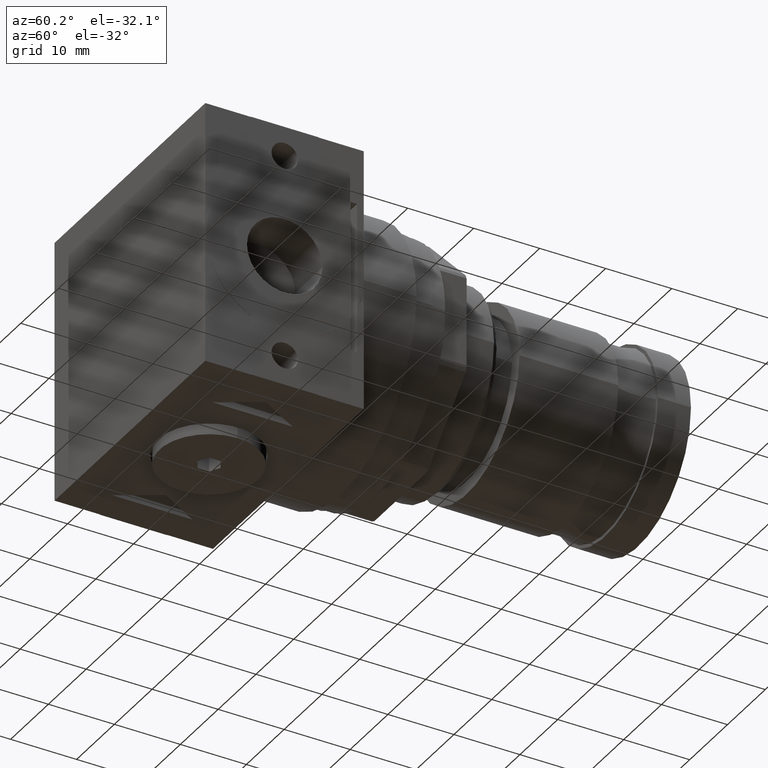
[diagram: clean part render]
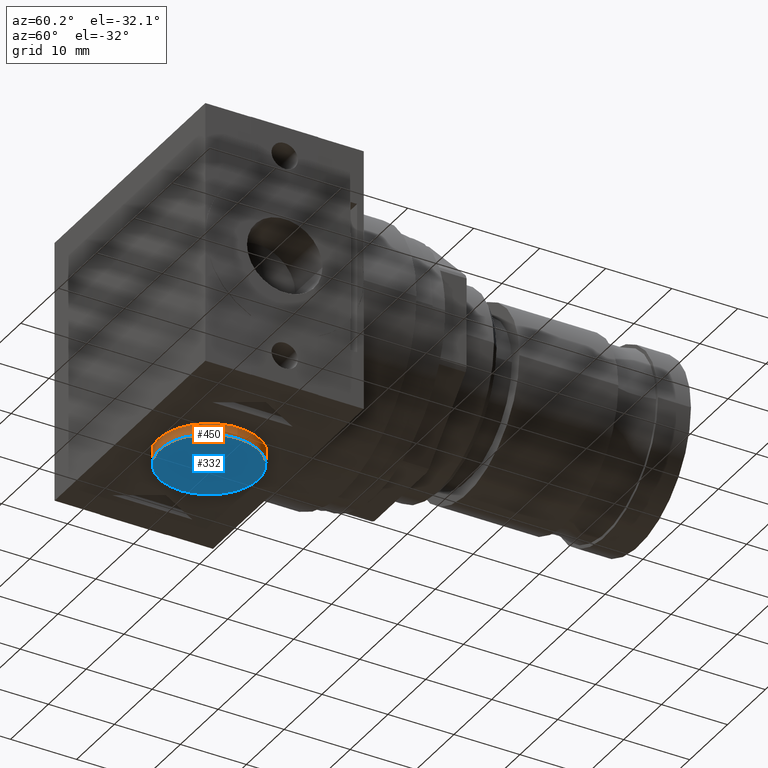
[diagram: same view with the hole feature highlighted: cylindrical wall and planar end face, labeled with their STEP entity ids]
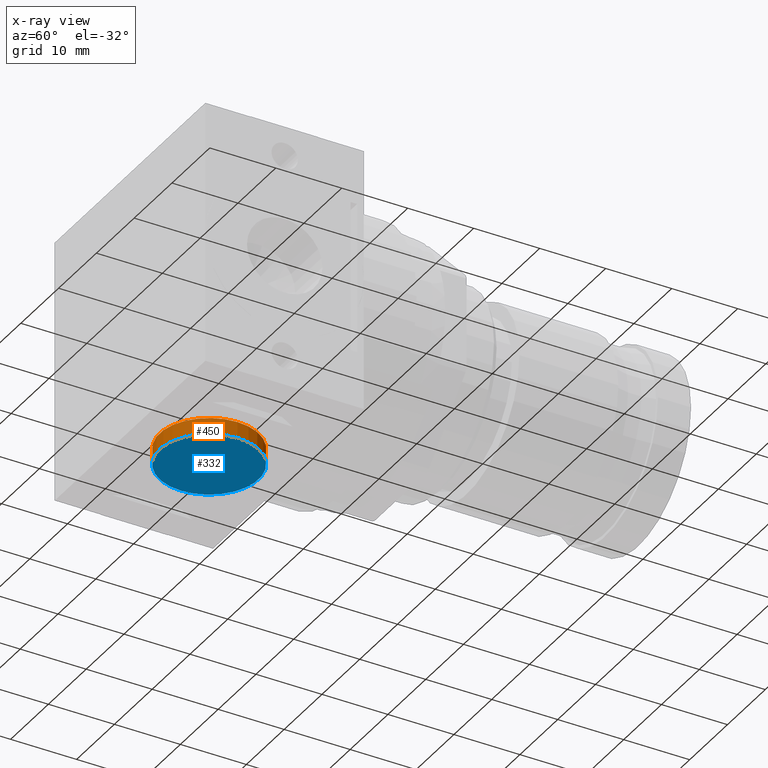
[diagram: x-ray of the same camera — body ghosted, the hole faces saturated]
A machine part, auxiliary view. The highlighted faces form one hole feature of diameter 15 mm: the cylindrical wall (entity #450, orange) and its adjacent planar end face (entity #332, blue) — they share a circular edge in the B-rep.
The next image is the same camera in x-ray (body ghosted, the hole faces saturated) — the bore reads through the body.
Wall:
#450 = ADVANCED_FACE( '', ( #911, #912 ), #913, .T. );
#911 = FACE_OUTER_BOUND( '', #1356, .T. );
#912 = FACE_OUTER_BOUND( '', #1357, .T. );
#913 = CYLINDRICAL_SURFACE( '', #1358, 7.50000000000000 );
#1356 = EDGE_LOOP( '', ( #2360 ) );
#1357 = EDGE_LOOP( '', ( #2361 ) );
#1358 = AXIS2_PLACEMENT_3D( '', #2362, #2363, #2364 );
#2360 = ORIENTED_EDGE( '', *, *, #2422, .F. );
#2361 = ORIENTED_EDGE( '', *, *, #2668, .T. );
#2362 = CARTESIAN_POINT( '', ( 7.00000000000000, 0.000000000000000, 0.000000000000000 ) );
#2363 = DIRECTION( '', ( -1.00000000000000, -0.000000000000000, 0.000000000000000 ) );
#2364 = DIRECTION( '', ( -0.000000000000000, 0.000000000000000, -1.00000000000000 ) );
#2422 = EDGE_CURVE( '', #2816, #2816, #2817, .T. );
#2668 = EDGE_CURVE( '', #3215, #3215, #3216, .T. );
#2816 = VERTEX_POINT( '', #3389 );
#2817 = CIRCLE( '', #3390, 7.50000000000000 );
#3215 = VERTEX_POINT( '', #3910 );
#3216 = CIRCLE( '', #3911, 7.50000000000000 );
#3389 = CARTESIAN_POINT( '', ( 0.000000000000000, 0.000000000000000, -7.50000000000000 ) );
#3390 = AXIS2_PLACEMENT_3D( '', #4144, #4145, #4146 );
#3910 = CARTESIAN_POINT( '', ( -2.50000000000000, 0.000000000000000, -7.50000000000000 ) );
#3911 = AXIS2_PLACEMENT_3D( '', #4452, #4453, #4454 );
#4144 = CARTESIAN_POINT( '', ( 0.000000000000000, 0.000000000000000, 0.000000000000000 ) );
#4145 = DIRECTION( '', ( 1.00000000000000, 0.000000000000000, -0.000000000000000 ) );
#4146 = DIRECTION( '', ( -0.000000000000000, 0.000000000000000, -1.00000000000000 ) );
#4452 = CARTESIAN_POINT( '', ( -2.50000000000000, 0.000000000000000, 0.000000000000000 ) );
#4453 = DIRECTION( '', ( 1.00000000000000, 0.000000000000000, -0.000000000000000 ) );
#4454 = DIRECTION( '', ( -0.000000000000000, 0.000000000000000, -1.00000000000000 ) );
End face:
#332 = ADVANCED_FACE( '', ( #711, #712 ), #713, .F. );
#711 = FACE_OUTER_BOUND( '', #1156, .T. );
#712 = FACE_BOUND( '', #1157, .T. );
#713 = PLANE( '', #1158 );
#1156 = EDGE_LOOP( '', ( #1859 ) );
#1157 = EDGE_LOOP( '', ( #1860, #1861, #1862, #1863, #1864, #1865 ) );
#1158 = AXIS2_PLACEMENT_3D( '', #1866, #1867, #1868 );
#1859 = ORIENTED_EDGE( '', *, *, #2668, .F. );
#1860 = ORIENTED_EDGE( '', *, *, #2669, .F. );
#1861 = ORIENTED_EDGE( '', *, *, #2477, .F. );
#1862 = ORIENTED_EDGE( '', *, *, #2657, .F. );
#1863 = ORIENTED_EDGE( '', *, *, #2670, .F. );
#1864 = ORIENTED_EDGE( '', *, *, #2671, .F. );
#1865 = ORIENTED_EDGE( '', *, *, #2672, .F. );
#1866 = CARTESIAN_POINT( '', ( -2.50000000000000, 0.000000000000000, 0.000000000000000 ) );
#1867 = DIRECTION( '', ( 1.00000000000000, 0.000000000000000, -0.000000000000000 ) );
#1868 = DIRECTION( '', ( -0.000000000000000, 0.000000000000000, -1.00000000000000 ) );
#2477 = EDGE_CURVE( '', #2908, #2909, #2910, .T. );
#2657 = EDGE_CURVE( '', #3199, #2908, #3200, .T. );
#2668 = EDGE_CURVE( '', #3215, #3215, #3216, .T. );
#2669 = EDGE_CURVE( '', #2909, #3217, #3218, .T. );
#2670 = EDGE_CURVE( '', #3219, #3199, #3220, .T. );
#2671 = EDGE_CURVE( '', #3221, #3219, #3222, .T. );
#2672 = EDGE_CURVE( '', #3217, #3221, #3223, .T. );
#2908 = VERTEX_POINT( '', #3502 );
#2909 = VERTEX_POINT( '', #3503 );
#2910 = LINE( '', #3504, #3505 );
#3199 = VERTEX_POINT( '', #3888 );
#3200 = LINE( '', #3889, #3890 );
#3215 = VERTEX_POINT( '', #3910 );
#3216 = CIRCLE( '', #3911, 7.50000000000000 );
#3217 = VERTEX_POINT( '', #3912 );
#3218 = LINE( '', #3913, #3914 );
#3219 = VERTEX_POINT( '', #3915 );
#3220 = LINE( '', #3916, #3917 );
#3221 = VERTEX_POINT( '', #3918 );
#3222 = LINE( '', #3919, #3920 );
#3223 = LINE( '', #3921, #3922 );
#3502 = CARTESIAN_POINT( '', ( -2.50000000000000, -0.866025403784438, -1.50000000000000 ) );
#3503 = CARTESIAN_POINT( '', ( -2.50000000000000, -1.73205080756888, -2.22044604925031E-016 ) );
#3504 = CARTESIAN_POINT( '', ( -2.50000000000000, -0.866025403784438, -1.50000000000000 ) );
#3505 = VECTOR( '', #4216, 1000.00000000000 );
#3888 = CARTESIAN_POINT( '', ( -2.50000000000000, 0.866025403784439, -1.50000000000000 ) );
#3889 = CARTESIAN_POINT( '', ( -2.50000000000000, 0.866025403784439, -1.50000000000000 ) );
#3890 = VECTOR( '', #4440, 1000.00000000000 );
#3910 = CARTESIAN_POINT( '', ( -2.50000000000000, 0.000000000000000, -7.50000000000000 ) );
#3911 = AXIS2_PLACEMENT_3D( '', #4452, #4453, #4454 );
#3912 = CARTESIAN_POINT( '', ( -2.50000000000000, -0.866025403784439, 1.50000000000000 ) );
#3913 = CARTESIAN_POINT( '', ( -2.50000000000000, -1.73205080756888, -2.22044604925031E-016 ) );
#3914 = VECTOR( '', #4455, 1000.00000000000 );
#3915 = CARTESIAN_POINT( '', ( -2.50000000000000, 1.73205080756888, 2.16840434497101E-016 ) );
#3916 = CARTESIAN_POINT( '', ( -2.50000000000000, 1.73205080756888, 2.22044604925031E-016 ) );
#3917 = VECTOR( '', #4456, 1000.00000000000 );
#3918 = CARTESIAN_POINT( '', ( -2.50000000000000, 0.866025403784438, 1.50000000000000 ) );
#3919 = CARTESIAN_POINT( '', ( -2.50000000000000, 0.866025403784438, 1.50000000000000 ) );
#3920 = VECTOR( '', #4457, 1000.00000000000 );
#3921 = CARTESIAN_POINT( '', ( -2.50000000000000, -0.866025403784439, 1.50000000000000 ) );
#3922 = VECTOR( '', #4458, 1000.00000000000 );
#4216 = DIRECTION( '', ( 0.000000000000000, -0.500000000000000, 0.866025403784439 ) );
#4440 = DIRECTION( '', ( 0.000000000000000, -1.00000000000000, 0.000000000000000 ) );
#4452 = CARTESIAN_POINT( '', ( -2.50000000000000, 0.000000000000000, 0.000000000000000 ) );
#4453 = DIRECTION( '', ( 1.00000000000000, 0.000000000000000, -0.000000000000000 ) );
#4454 = DIRECTION( '', ( -0.000000000000000, 0.000000000000000, -1.00000000000000 ) );
#4455 = DIRECTION( '', ( 0.000000000000000, 0.500000000000000, 0.866025403784439 ) );
#4456 = DIRECTION( '', ( 0.000000000000000, -0.500000000000000, -0.866025403784439 ) );
#4457 = DIRECTION( '', ( 0.000000000000000, 0.500000000000000, -0.866025403784439 ) );
#4458 = DIRECTION( '', ( 0.000000000000000, 1.00000000000000, 0.000000000000000 ) );